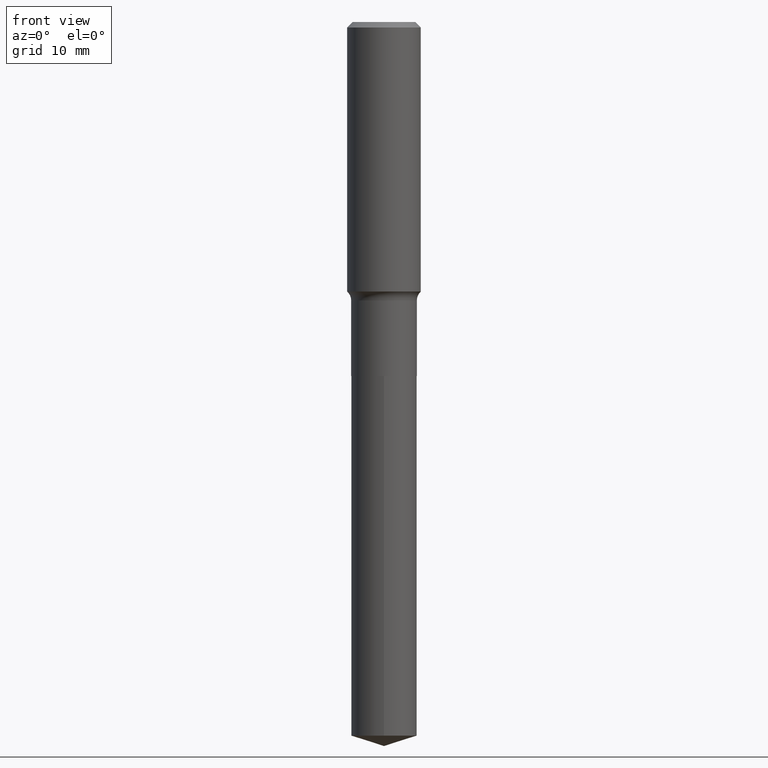
[diagram: clean part render]
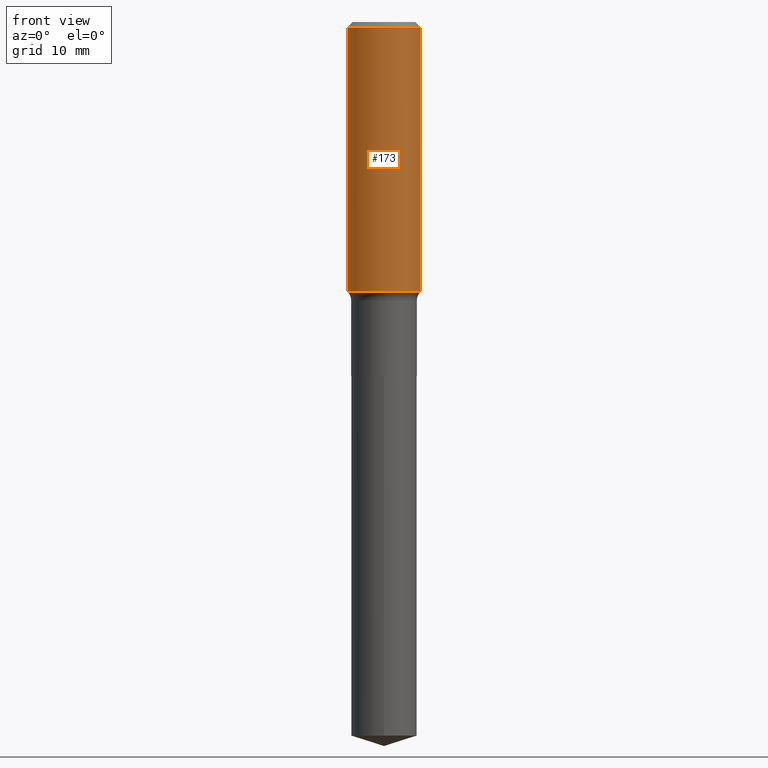
[diagram: same view with one face highlighted and labeled with its STEP entity id]
A machine part, front view. The second image highlights one B-rep face of the part: STEP entity #173.
In plain terms, the highlighted cylindrical surface (partial cylindrical patch) has radius 5.9995 mm, axis along (-0, 0, 1).
Its self-contained STEP definition (entity closure, byte-faithful):
#17 = LINE ( 'NONE', #220, #214 ) ;
#19 = CIRCLE ( 'NONE', #315, 0.2362000000000002153 ) ;
#31 = CYLINDRICAL_SURFACE ( 'NONE', #117, 0.2362000000000001043 ) ;
#38 = DIRECTION ( 'NONE',  ( -2.445468806185136597E-29, 3.491481338843145583E-15, 1.000000000000000000 ) ) ;
#71 = CARTESIAN_POINT ( 'NONE',  ( 4.229359755644966557E-29, -6.038404834582329294E-15, -1.729467881556277398 ) ) ;
#105 = DIRECTION ( 'NONE',  ( 1.000000000000000000, -6.982962677686266711E-15, 4.876176775795935793E-29 ) ) ;
#107 = CIRCLE ( 'NONE', #227, 0.2361999999999999933 ) ;
#115 = DIRECTION ( 'NONE',  ( -2.445468806185136597E-29, 3.491481338843145583E-15, 1.000000000000000000 ) ) ;
#117 = AXIS2_PLACEMENT_3D ( 'NONE', #258, #38, #105 ) ;
#142 = CARTESIAN_POINT ( 'NONE',  ( 0.2362000000000002153, -7.687780619051827397E-15, -1.729467881556277398 ) ) ;
#145 = VERTEX_POINT ( 'NONE', #319 ) ;
#173 = ADVANCED_FACE ( 'NONE', ( #253 ), #31, .T. ) ;
#213 = CARTESIAN_POINT ( 'NONE',  ( -0.2362000000000002153, -4.360102892716971322E-15, -1.729467881556277398 ) ) ;
#214 = VECTOR ( 'NONE', #396, 39.37007874015748143 ) ;
#220 = CARTESIAN_POINT ( 'NONE',  ( -0.2362000000000001043, 1.678301941865357380E-15, -1.161852468318209317E-29 ) ) ;
#224 = ORIENTED_EDGE ( 'NONE', *, *, #443, .F. ) ;
#227 = AXIS2_PLACEMENT_3D ( 'NONE', #237, #115, #353 ) ;
#233 = CARTESIAN_POINT ( 'NONE',  ( 0.2362000000000001043, -1.649375784469496920E-15, 1.151752954443000508E-29 ) ) ;
#237 = CARTESIAN_POINT ( 'NONE',  ( 8.664295980313993487E-31, -1.237031838352134079E-16, -0.03543000000000021826 ) ) ;
#252 = ORIENTED_EDGE ( 'NONE', *, *, #289, .T. ) ;
#253 = FACE_OUTER_BOUND ( 'NONE', #355, .T. ) ;
#255 = CARTESIAN_POINT ( 'NONE',  ( -0.2361999999999999933, -1.402752067343413662E-15, -0.03543000000000021826 ) ) ;
#258 = CARTESIAN_POINT ( 'NONE',  ( 0.000000000000000000, 0.000000000000000000, 0.000000000000000000 ) ) ;
#289 = EDGE_CURVE ( 'NONE', #305, #291, #19, .T. ) ;
#291 = VERTEX_POINT ( 'NONE', #142 ) ;
#292 = DIRECTION ( 'NONE',  ( 1.000000000000000000, -6.982962677686266711E-15, 0.000000000000000000 ) ) ;
#297 = ORIENTED_EDGE ( 'NONE', *, *, #450, .T. ) ;
#305 = VERTEX_POINT ( 'NONE', #213 ) ;
#315 = AXIS2_PLACEMENT_3D ( 'NONE', #71, #412, #292 ) ;
#319 = CARTESIAN_POINT ( 'NONE',  ( 0.2361999999999999933, -1.773078968304709514E-15, -0.03543000000000021826 ) ) ;
#320 = VERTEX_POINT ( 'NONE', #255 ) ;
#353 = DIRECTION ( 'NONE',  ( 1.000000000000000000, -6.982962677686266711E-15, 0.000000000000000000 ) ) ;
#355 = EDGE_LOOP ( 'NONE', ( #478, #252, #297, #224 ) ) ;
#359 = LINE ( 'NONE', #233, #425 ) ;
#396 = DIRECTION ( 'NONE',  ( -2.445468806185136877E-29, 3.491481338843145188E-15, 1.000000000000000000 ) ) ;
#398 = EDGE_CURVE ( 'NONE', #305, #320, #17, .T. ) ;
#412 = DIRECTION ( 'NONE',  ( -2.445468806185136597E-29, 3.491481338843145583E-15, 1.000000000000000000 ) ) ;
#424 = DIRECTION ( 'NONE',  ( -2.445468806185136877E-29, 3.491481338843145188E-15, 1.000000000000000000 ) ) ;
#425 = VECTOR ( 'NONE', #424, 39.37007874015748143 ) ;
#443 = EDGE_CURVE ( 'NONE', #320, #145, #107, .T. ) ;
#450 = EDGE_CURVE ( 'NONE', #291, #145, #359, .T. ) ;
#478 = ORIENTED_EDGE ( 'NONE', *, *, #398, .F. ) ;